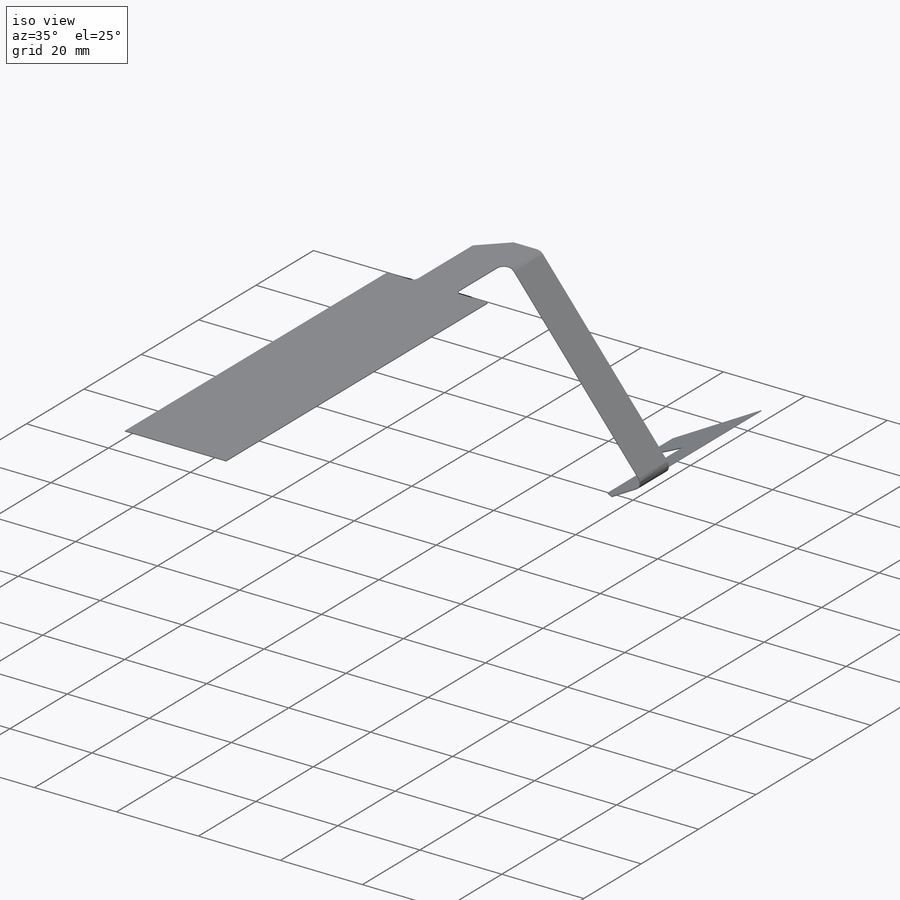
[diagram: iso view]
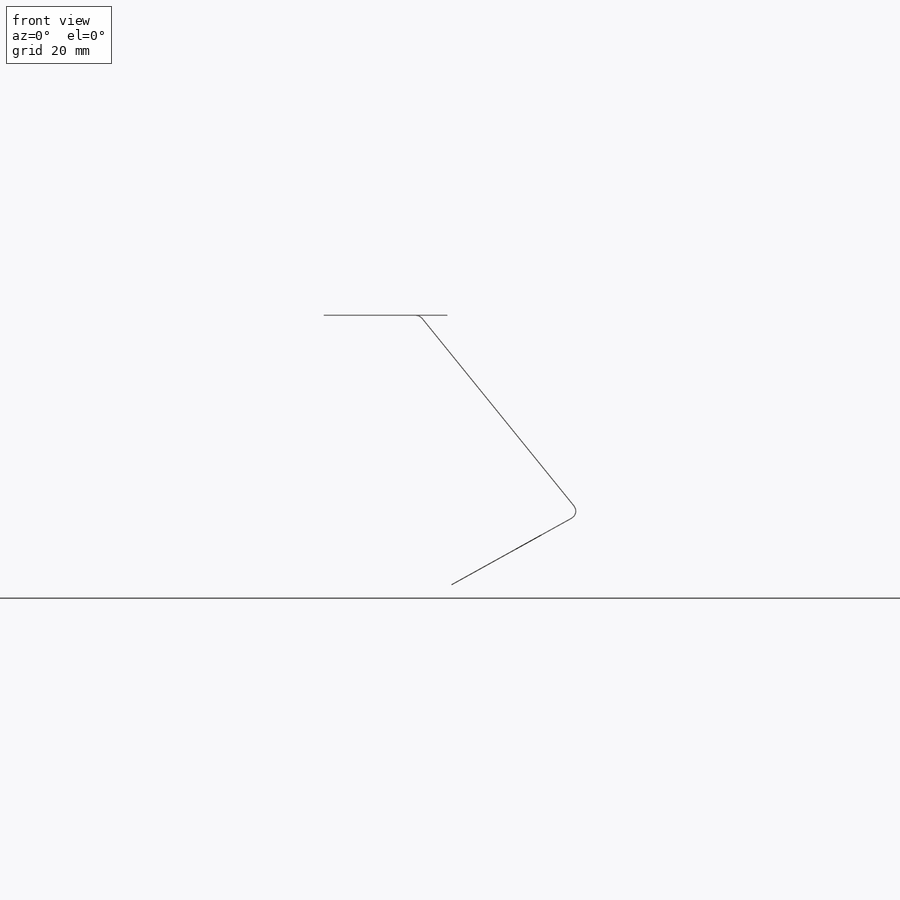
[diagram: front view]
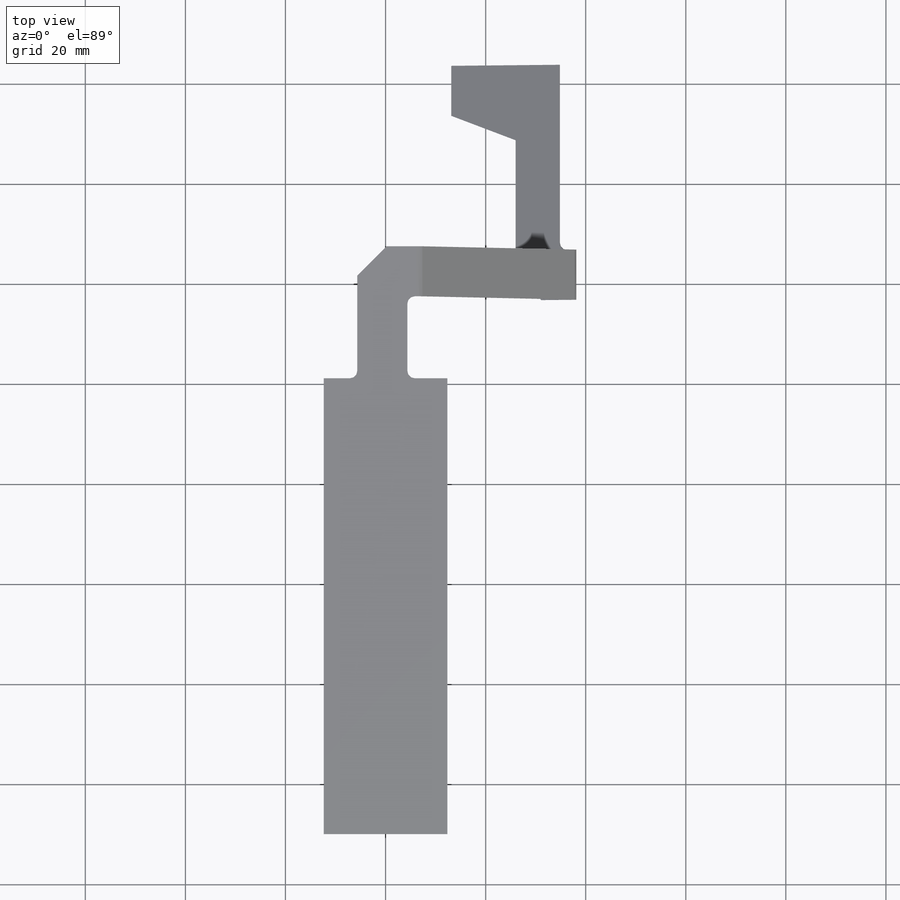
[diagram: top view]
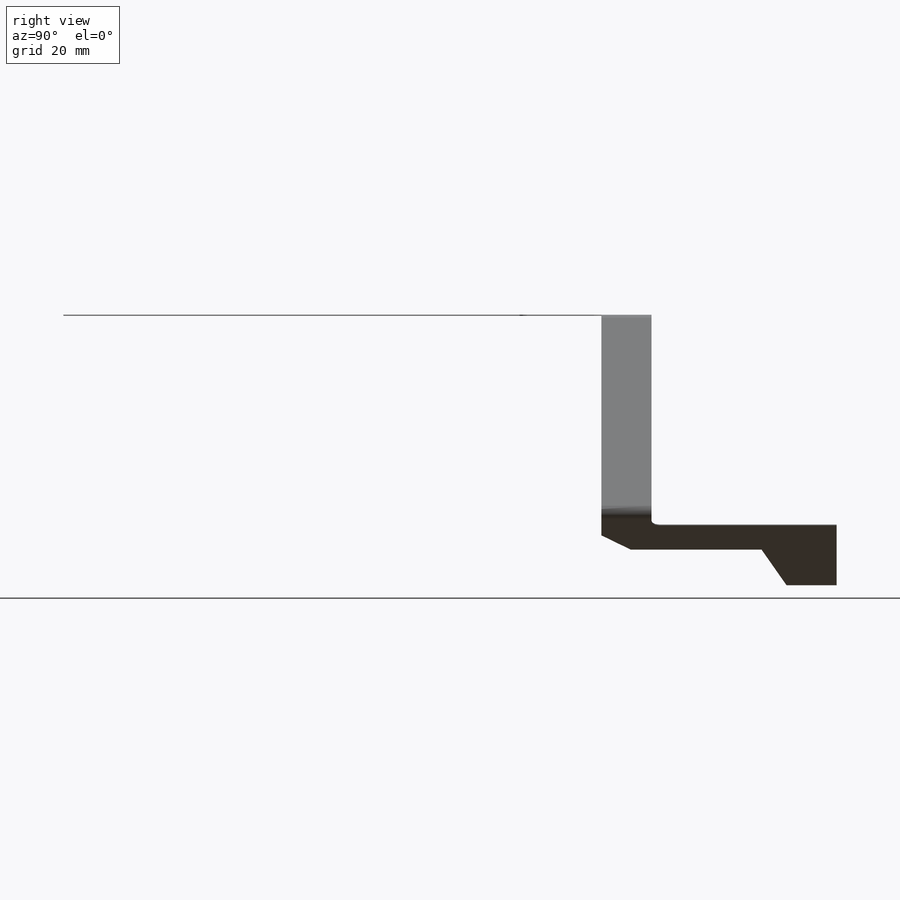
[diagram: right view]
SOLIDWORKS PART (.sldprt)
format: sldprt  version: not decoded by parser v0  size: 582,144 bytes
history: native  units: mm
features: sketch x8, sheet_metal_op x4, fillet x2, extrude x2, material x1, cut_extrude x1 + 3 further entries (+11 scaffold rows collapsed; 1 parser-record rows omitted)
feature tree (33):
  scaffold x11  (default folders/planes/origin — collapsed)
  material  "Custom Plastic"
  sketch  "Sketch1"  dims[D1=91.12mm D2=24.7mm D3=109.13mm]
  sheet_metal_op  "Sheet-Metal1"
  sheet_metal_op  "Base-Flange1"
  sketch  "Sketch4"  dims[c1.D1=8.0mm c1.D2=10.0mm c1.D3=10.0mm c1.D4=16.4mm c1.D5=52.0mm c1.D6=10.0mm c1.D7=22.0mm c2.D5=57.0mm c2.D8=10.0mm c3.D8=45.0deg c3.D9=10.0mm]
  sheet_metal_op  "Tab1"
  sketch  "Sketch8"  dims[c1.D1=5.0mm c1.D2=5.0mm c1.D3=5.0mm c1.D4=10.0mm c2.D2=24.7mm c2.D3=0.0mm]
  sheet_metal_op  "Tab2"
  fillet  "Fillet1"  Radius=1.5mm
  sketch  "Sketch5"  dims[c1.D1=~6.832299mm c2.D1=45.0deg c2.D2=10.0mm]
  cut_extrude  "Cut-Extrude1"  [1 undecoded]
  sketch  "Sketch6"  dims[D1=2.4mm]
  parser-record x1  (decoder bookkeeping rows leaked as tree rows — omitted from the tree; the rows remain in map.json)
  sketch  "Sketch7"  dims[D1=50.1mm]
  fillet  "Sketched Bend3"  [1 undecoded]
  extrude  "Sketch Transformation4"  [1 undecoded]
  "SketchBend2"
  "Flat-Pattern1"
  sketch  "Bend-Lines1"
  sketch  "Bounding-Box1"
  "Flatten-<SketchBend2>1"
  extrude  "Sketch Transformation1"  [1 undecoded]
decode coverage: 7 of 17 modeling features carry decoded parameters; 3 rows unclassified (native names shown)
note: ~ marks probable driven/reference dimensions
note: 4 parameter values undecoded
summary: no parameter record found for 4 features
note: suppression state not decoded; provenance and decode notes live in map.json
